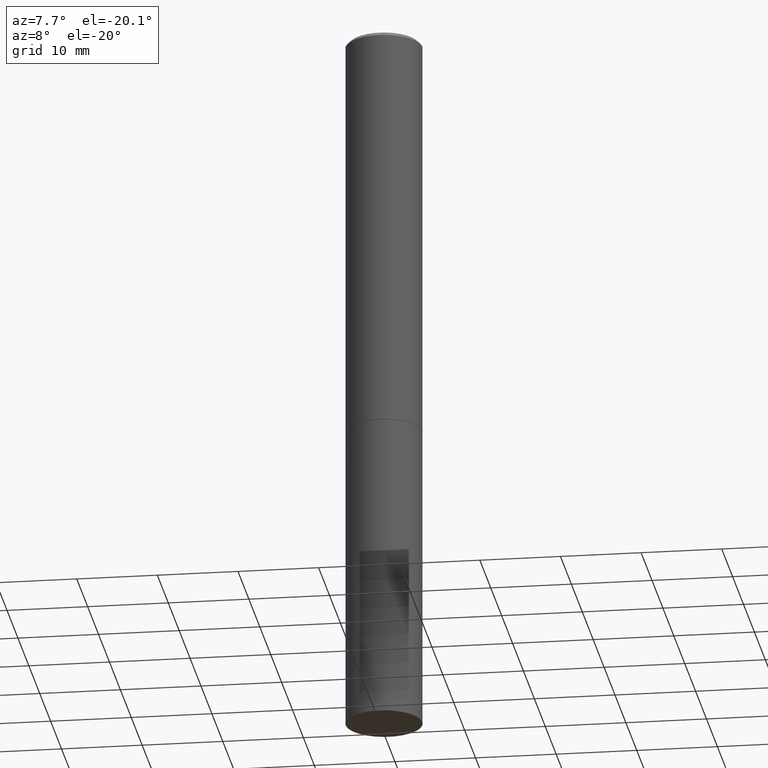
[diagram: clean part render]
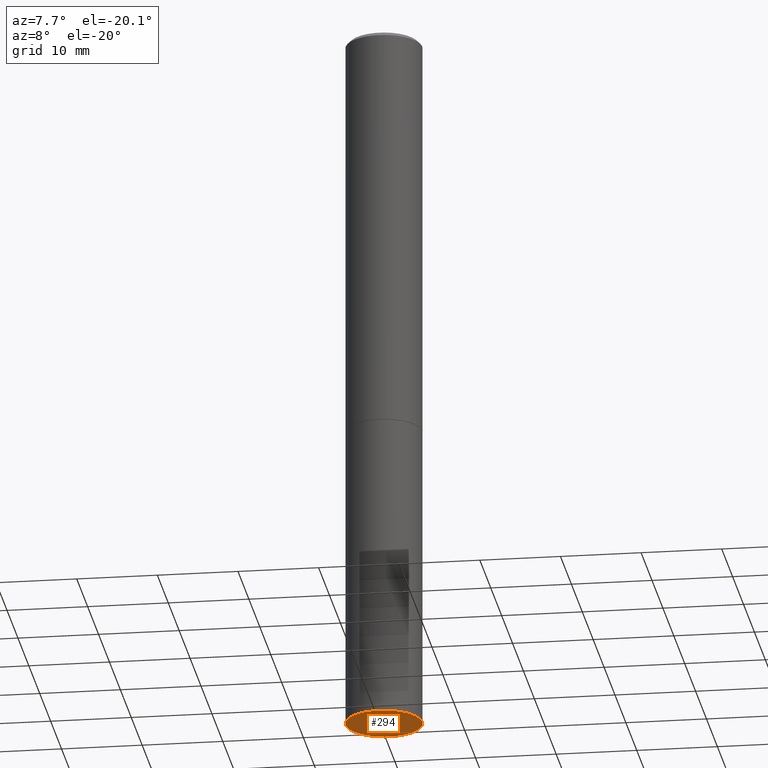
[diagram: same view with one face highlighted and labeled with its STEP entity id]
A machine part, auxiliary view. The second image highlights one B-rep face of the part: STEP entity #294.
In plain terms, the highlighted planar face has unit normal (0, -0, -1).
Its self-contained STEP definition (entity closure, byte-faithful):
#14 = PLANE ( 'NONE',  #116 ) ;
#30 = VERTEX_POINT ( 'NONE', #49 ) ;
#46 = DIRECTION ( 'NONE',  ( 2.438088387897960049E-29, -3.491481338843145188E-15, -1.000000000000000000 ) ) ;
#49 = CARTESIAN_POINT ( 'NONE',  ( 0.1875000000000000278, -1.352949018801718277E-14, -3.500000000000000000 ) ) ;
#65 = VERTEX_POINT ( 'NONE', #352 ) ;
#66 = DIRECTION ( 'NONE',  ( -2.445468806185136597E-29, 3.491481338843145583E-15, 1.000000000000000000 ) ) ;
#71 = CIRCLE ( 'NONE', #281, 0.1875000000000000278 ) ;
#92 = EDGE_LOOP ( 'NONE', ( #292, #329 ) ) ;
#116 = AXIS2_PLACEMENT_3D ( 'NONE', #141, #46, #249 ) ;
#141 = CARTESIAN_POINT ( 'NONE',  ( 1.309305502066260600E-15, 0.1874999999999877875, -3.500000000000000444 ) ) ;
#148 = AXIS2_PLACEMENT_3D ( 'NONE', #155, #66, #179 ) ;
#155 = CARTESIAN_POINT ( 'NONE',  ( 8.559140821647976968E-29, -1.222018468595100934E-14, -3.500000000000000000 ) ) ;
#176 = EDGE_CURVE ( 'NONE', #30, #65, #302, .T. ) ;
#179 = DIRECTION ( 'NONE',  ( 1.000000000000000000, -6.982962677686261189E-15, 0.000000000000000000 ) ) ;
#231 = CARTESIAN_POINT ( 'NONE',  ( 8.559140821647976968E-29, -1.222018468595100934E-14, -3.500000000000000000 ) ) ;
#249 = DIRECTION ( 'NONE',  ( -1.000000000000000000, 6.982962677686265922E-15, -4.876176775795935793E-29 ) ) ;
#273 = FACE_OUTER_BOUND ( 'NONE', #92, .T. ) ;
#281 = AXIS2_PLACEMENT_3D ( 'NONE', #231, #307, #340 ) ;
#292 = ORIENTED_EDGE ( 'NONE', *, *, #176, .F. ) ;
#294 = ADVANCED_FACE ( 'NONE', ( #273 ), #14, .T. ) ;
#302 = CIRCLE ( 'NONE', #148, 0.1875000000000000278 ) ;
#307 = DIRECTION ( 'NONE',  ( -2.445468806185136597E-29, 3.491481338843145583E-15, 1.000000000000000000 ) ) ;
#329 = ORIENTED_EDGE ( 'NONE', *, *, #342, .F. ) ;
#340 = DIRECTION ( 'NONE',  ( 1.000000000000000000, -6.982962677686261189E-15, 0.000000000000000000 ) ) ;
#342 = EDGE_CURVE ( 'NONE', #65, #30, #71, .T. ) ;
#352 = CARTESIAN_POINT ( 'NONE',  ( -0.1875000000000000278, -8.269306052268462011E-15, -3.500000000000000000 ) ) ;